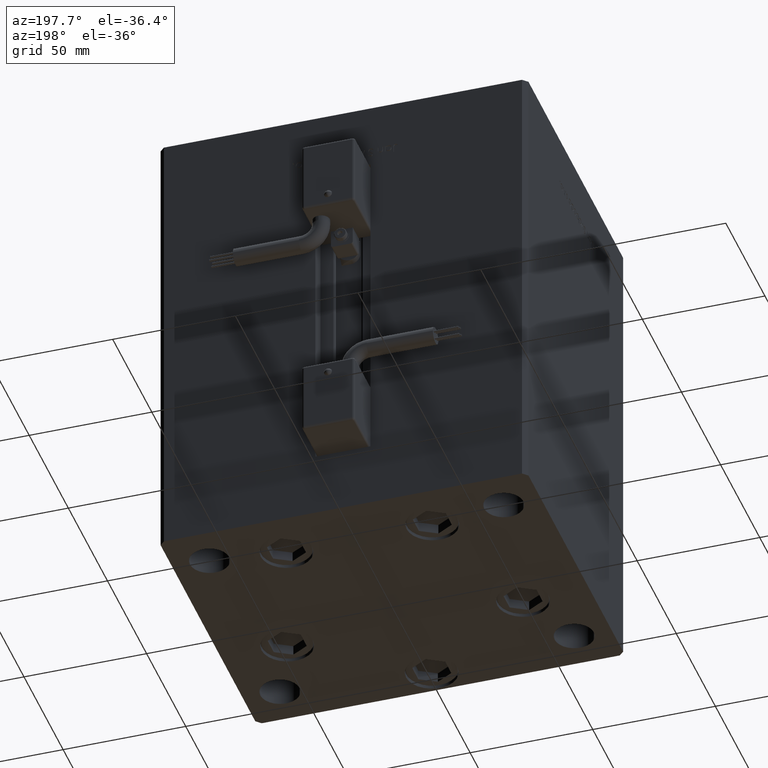
[diagram: clean part render]
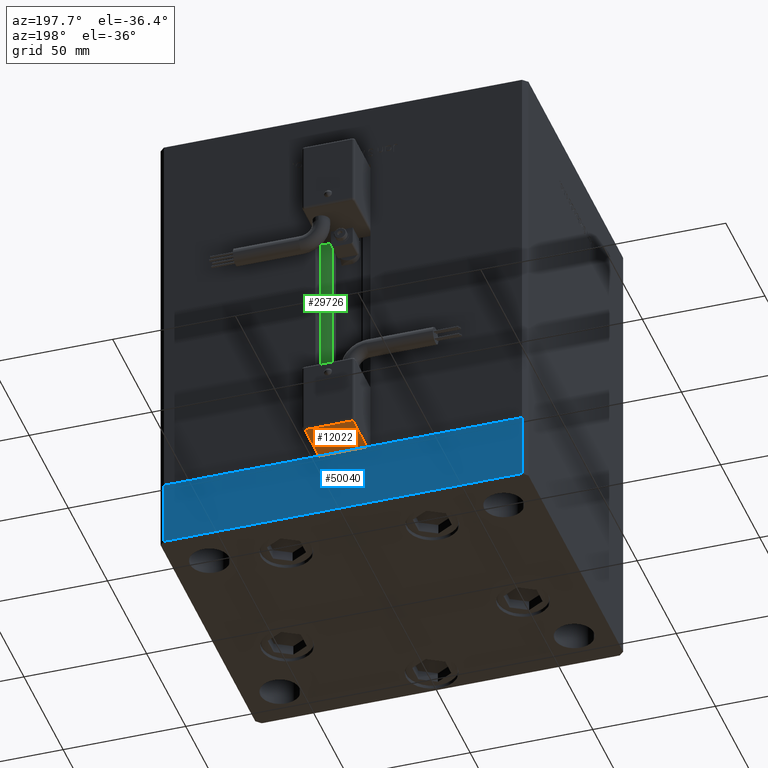
[diagram: same view with three faces highlighted in distinct colors, each labeled with its STEP entity id]
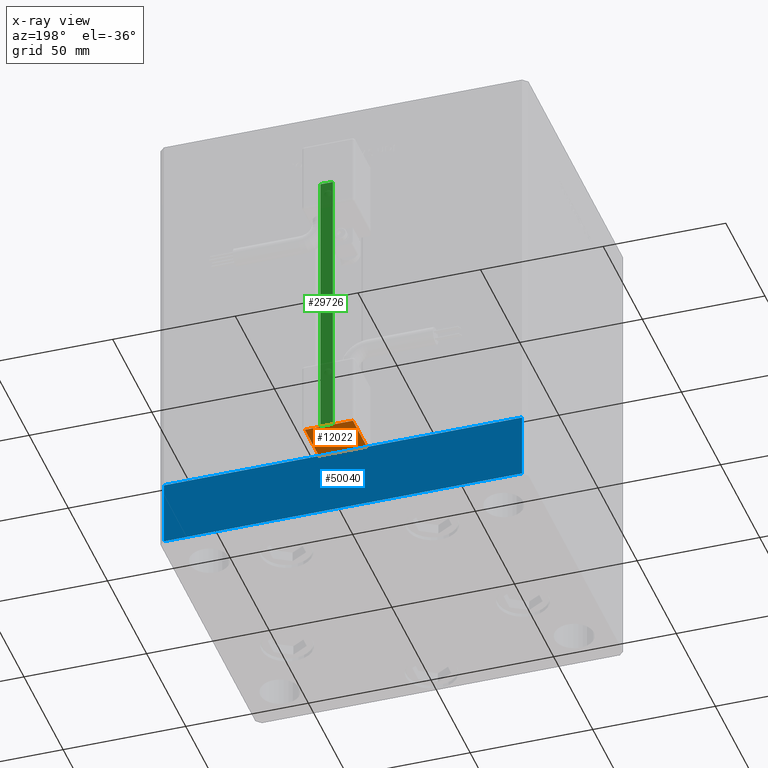
[diagram: x-ray of the same camera — body ghosted, the three highlighted faces saturated]
A machine part, auxiliary view with three faces highlighted in distinct colors.
The next image is the same camera in x-ray (body ghosted, the three faces saturated) — at least one of them is partly hidden behind the body in this view.
Their STEP definitions:

[orange] entity #12022 — the highlighted planar face has unit normal (0, 0, 1).
#490 = VERTEX_POINT ( 'NONE', #7812 ) ;
#1948 = DIRECTION ( 'NONE',  ( -1.000000000000000000, 0.000000000000000000, -2.220446049250000002E-16 ) ) ;
#3008 = CARTESIAN_POINT ( 'NONE',  ( 9.799999999999998934, 50.50000000000000000, -25.00000000000000000 ) ) ;
#4658 = VECTOR ( 'NONE', #34496, 1000.000000000000000 ) ;
#6692 = VERTEX_POINT ( 'NONE', #44783 ) ;
#7632 = EDGE_CURVE ( 'NONE', #490, #6692, #30154, .T. ) ;
#7812 = CARTESIAN_POINT ( 'NONE',  ( -9.799999999999998934, 27.00000000000000000, -25.00000000000000000 ) ) ;
#12022 = ADVANCED_FACE ( 'NONE', ( #28087 ), #12184, .F. ) ;
#12184 = PLANE ( 'NONE',  #33419 ) ;
#15599 = LINE ( 'NONE', #45413, #36672 ) ;
#16352 = DIRECTION ( 'NONE',  ( 2.220446049250000002E-16, 1.400000000000000069E-16, -1.000000000000000000 ) ) ;
#17190 = VECTOR ( 'NONE', #21790, 1000.000000000000000 ) ;
#17471 = CARTESIAN_POINT ( 'NONE',  ( 9.799999999999998934, 51.50000000000000000, -25.00000000000000000 ) ) ;
#19116 = VECTOR ( 'NONE', #21505, 1000.000000000000000 ) ;
#21447 = VERTEX_POINT ( 'NONE', #3008 ) ;
#21505 = DIRECTION ( 'NONE',  ( 1.000000000000000000, 0.000000000000000000, 2.220446049250000002E-16 ) ) ;
#21790 = DIRECTION ( 'NONE',  ( 3.108624468950000014E-32, -1.000000000000000000, -1.400000000000000069E-16 ) ) ;
#23654 = ORIENTED_EDGE ( 'NONE', *, *, #50111, .T. ) ;
#26415 = LINE ( 'NONE', #17471, #4658 ) ;
#27222 = EDGE_LOOP ( 'NONE', ( #23654, #38988, #33403, #42002 ) ) ;
#28087 = FACE_OUTER_BOUND ( 'NONE', #27222, .T. ) ;
#30154 = LINE ( 'NONE', #42689, #19116 ) ;
#33028 = CARTESIAN_POINT ( 'NONE',  ( -9.799999999999998934, 51.50000000000000000, -25.00000000000000000 ) ) ;
#33403 = ORIENTED_EDGE ( 'NONE', *, *, #35997, .T. ) ;
#33419 = AXIS2_PLACEMENT_3D ( 'NONE', #53997, #16352, #49239 ) ;
#34496 = DIRECTION ( 'NONE',  ( -3.108624468950000014E-32, 1.000000000000000000, 1.400000000000000069E-16 ) ) ;
#35689 = EDGE_CURVE ( 'NONE', #21447, #53533, #15599, .T. ) ;
#35997 = EDGE_CURVE ( 'NONE', #6692, #21447, #26415, .T. ) ;
#36672 = VECTOR ( 'NONE', #1948, 1000.000000000000000 ) ;
#38988 = ORIENTED_EDGE ( 'NONE', *, *, #7632, .T. ) ;
#40644 = CARTESIAN_POINT ( 'NONE',  ( -9.799999999999998934, 50.50000000000000000, -25.00000000000000000 ) ) ;
#42002 = ORIENTED_EDGE ( 'NONE', *, *, #35689, .T. ) ;
#42689 = CARTESIAN_POINT ( 'NONE',  ( 10.80000000000000071, 27.00000000000000000, -25.00000000000000000 ) ) ;
#44783 = CARTESIAN_POINT ( 'NONE',  ( 9.799999999999998934, 27.00000000000000000, -25.00000000000000000 ) ) ;
#45413 = CARTESIAN_POINT ( 'NONE',  ( 10.80000000000000071, 50.50000000000000000, -25.00000000000000000 ) ) ;
#46103 = LINE ( 'NONE', #33028, #17190 ) ;
#49239 = DIRECTION ( 'NONE',  ( 0.000000000000000000, -1.000000000000000000, -1.400000000000000069E-16 ) ) ;
#50111 = EDGE_CURVE ( 'NONE', #53533, #490, #46103, .T. ) ;
#53533 = VERTEX_POINT ( 'NONE', #40644 ) ;
#53997 = CARTESIAN_POINT ( 'NONE',  ( 10.80000000000000071, 51.50000000000000000, -25.00000000000000000 ) ) ;

[blue] entity #50040 — the highlighted planar face has unit normal (0, 1, 0).
#1633 = VECTOR ( 'NONE', #42651, 1000.000000000000000 ) ;
#2172 = CARTESIAN_POINT ( 'NONE',  ( 72.99999999999992895, 62.50000000000001421, 0.000000000000000000 ) ) ;
#2945 = CARTESIAN_POINT ( 'NONE',  ( 72.99999999999992895, 62.50000000000001421, -27.00000000000000000 ) ) ;
#5741 = PLANE ( 'NONE',  #12740 ) ;
#7672 = VERTEX_POINT ( 'NONE', #54691 ) ;
#8671 = LINE ( 'NONE', #25670, #1633 ) ;
#12126 = VERTEX_POINT ( 'NONE', #2172 ) ;
#12740 = AXIS2_PLACEMENT_3D ( 'NONE', #52832, #53641, #14646 ) ;
#13732 = ORIENTED_EDGE ( 'NONE', *, *, #54648, .F. ) ;
#14646 = DIRECTION ( 'NONE',  ( -1.000000000000000000, -1.901066822988282936E-16, 0.000000000000000000 ) ) ;
#17763 = CARTESIAN_POINT ( 'NONE',  ( 72.99999999999992895, 62.50000000000001421, -27.00000000000000000 ) ) ;
#17846 = DIRECTION ( 'NONE',  ( 0.000000000000000000, 0.000000000000000000, 1.000000000000000000 ) ) ;
#18386 = CARTESIAN_POINT ( 'NONE',  ( -73.00000000000001421, 62.49999999999998579, -27.00000000000000000 ) ) ;
#18586 = VECTOR ( 'NONE', #44755, 1000.000000000000000 ) ;
#22047 = LINE ( 'NONE', #42668, #40295 ) ;
#22300 = EDGE_CURVE ( 'NONE', #12126, #27799, #8671, .T. ) ;
#22761 = EDGE_CURVE ( 'NONE', #7672, #45452, #24433, .T. ) ;
#24433 = LINE ( 'NONE', #2945, #18586 ) ;
#25593 = DIRECTION ( 'NONE',  ( 0.000000000000000000, 0.000000000000000000, 1.000000000000000000 ) ) ;
#25670 = CARTESIAN_POINT ( 'NONE',  ( 72.99999999999992895, 62.50000000000001421, 0.000000000000000000 ) ) ;
#27799 = VERTEX_POINT ( 'NONE', #43832 ) ;
#29184 = ORIENTED_EDGE ( 'NONE', *, *, #38195, .T. ) ;
#30371 = EDGE_LOOP ( 'NONE', ( #41487, #13732, #45635, #29184 ) ) ;
#38195 = EDGE_CURVE ( 'NONE', #45452, #27799, #22047, .T. ) ;
#38397 = LINE ( 'NONE', #17763, #50168 ) ;
#40295 = VECTOR ( 'NONE', #17846, 1000.000000000000000 ) ;
#41487 = ORIENTED_EDGE ( 'NONE', *, *, #22300, .F. ) ;
#42651 = DIRECTION ( 'NONE',  ( -1.000000000000000000, -1.901066822988282689E-16, 0.000000000000000000 ) ) ;
#42668 = CARTESIAN_POINT ( 'NONE',  ( -73.00000000000001421, 62.49999999999998579, -27.00000000000000000 ) ) ;
#43832 = CARTESIAN_POINT ( 'NONE',  ( -73.00000000000001421, 62.49999999999998579, 0.000000000000000000 ) ) ;
#44713 = FACE_OUTER_BOUND ( 'NONE', #30371, .T. ) ;
#44755 = DIRECTION ( 'NONE',  ( -1.000000000000000000, -1.901066822988282689E-16, 0.000000000000000000 ) ) ;
#45452 = VERTEX_POINT ( 'NONE', #18386 ) ;
#45635 = ORIENTED_EDGE ( 'NONE', *, *, #22761, .T. ) ;
#50040 = ADVANCED_FACE ( 'NONE', ( #44713 ), #5741, .T. ) ;
#50168 = VECTOR ( 'NONE', #25593, 1000.000000000000000 ) ;
#52832 = CARTESIAN_POINT ( 'NONE',  ( 72.99999999999992895, 62.50000000000001421, -27.00000000000000000 ) ) ;
#53641 = DIRECTION ( 'NONE',  ( -1.901066822988282936E-16, 1.000000000000000000, 0.000000000000000000 ) ) ;
#54648 = EDGE_CURVE ( 'NONE', #7672, #12126, #38397, .T. ) ;
#54691 = CARTESIAN_POINT ( 'NONE',  ( 72.99999999999992895, 62.50000000000001421, -27.00000000000000000 ) ) ;

[green] entity #29726 — the highlighted planar face has unit normal (0, -1, 0).
#217 = CARTESIAN_POINT ( 'NONE',  ( 6.183333333334001480, 55.99999999999999289, 0.000000000000000000 ) ) ;
#714 = LINE ( 'NONE', #52808, #39409 ) ;
#2797 = CARTESIAN_POINT ( 'NONE',  ( 6.183333333334001480, 55.99999999999999289, 0.000000000000000000 ) ) ;
#2957 = CARTESIAN_POINT ( 'NONE',  ( 11.25000000000000178, 55.99999999999999289, 0.000000000000000000 ) ) ;
#4129 = DIRECTION ( 'NONE',  ( 0.000000000000000000, -0.000000000000000000, -1.000000000000000000 ) ) ;
#4865 = VERTEX_POINT ( 'NONE', #20167 ) ;
#7277 = DIRECTION ( 'NONE',  ( -0.000000000000000000, -0.000000000000000000, 1.000000000000000000 ) ) ;
#9246 = CARTESIAN_POINT ( 'NONE',  ( 11.25000000000000178, 55.99999999999999289, 136.0000000000000000 ) ) ;
#9859 = EDGE_CURVE ( 'NONE', #47837, #4865, #40997, .T. ) ;
#10623 = EDGE_CURVE ( 'NONE', #49380, #4865, #52738, .T. ) ;
#13490 = LINE ( 'NONE', #47775, #17053 ) ;
#14662 = VECTOR ( 'NONE', #28208, 1000.000000000000000 ) ;
#17053 = VECTOR ( 'NONE', #51959, 1000.000000000000000 ) ;
#17205 = ORIENTED_EDGE ( 'NONE', *, *, #9859, .T. ) ;
#20167 = CARTESIAN_POINT ( 'NONE',  ( 6.183333333334001480, 55.99999999999999289, 136.0000000000000000 ) ) ;
#26101 = CARTESIAN_POINT ( 'NONE',  ( 6.183333333334001480, 55.99999999999999289, 0.000000000000000000 ) ) ;
#28208 = DIRECTION ( 'NONE',  ( -1.000000000000000000, 0.000000000000000000, 0.000000000000000000 ) ) ;
#29726 = ADVANCED_FACE ( 'NONE', ( #29780 ), #51224, .F. ) ;
#29780 = FACE_OUTER_BOUND ( 'NONE', #31459, .T. ) ;
#30061 = DIRECTION ( 'NONE',  ( 0.000000000000000000, -1.000000000000000000, 0.000000000000000000 ) ) ;
#31459 = EDGE_LOOP ( 'NONE', ( #43197, #46240, #17205, #48317 ) ) ;
#31627 = DIRECTION ( 'NONE',  ( -0.000000000000000000, -0.000000000000000000, 1.000000000000000000 ) ) ;
#34328 = EDGE_CURVE ( 'NONE', #47837, #46783, #13490, .T. ) ;
#39409 = VECTOR ( 'NONE', #31627, 1000.000000000000000 ) ;
#39701 = VECTOR ( 'NONE', #7277, 1000.000000000000000 ) ;
#40997 = LINE ( 'NONE', #2797, #39701 ) ;
#43197 = ORIENTED_EDGE ( 'NONE', *, *, #47865, .F. ) ;
#44471 = AXIS2_PLACEMENT_3D ( 'NONE', #217, #30061, #4129 ) ;
#44627 = CARTESIAN_POINT ( 'NONE',  ( 0.000000000000000000, 55.99999999999999289, 136.0000000000000000 ) ) ;
#46240 = ORIENTED_EDGE ( 'NONE', *, *, #34328, .F. ) ;
#46783 = VERTEX_POINT ( 'NONE', #2957 ) ;
#47775 = CARTESIAN_POINT ( 'NONE',  ( 6.183333333334001480, 55.99999999999999289, 0.000000000000000000 ) ) ;
#47837 = VERTEX_POINT ( 'NONE', #26101 ) ;
#47865 = EDGE_CURVE ( 'NONE', #46783, #49380, #714, .T. ) ;
#48317 = ORIENTED_EDGE ( 'NONE', *, *, #10623, .F. ) ;
#49380 = VERTEX_POINT ( 'NONE', #9246 ) ;
#51224 = PLANE ( 'NONE',  #44471 ) ;
#51959 = DIRECTION ( 'NONE',  ( 1.000000000000000000, 0.000000000000000000, 0.000000000000000000 ) ) ;
#52738 = LINE ( 'NONE', #44627, #14662 ) ;
#52808 = CARTESIAN_POINT ( 'NONE',  ( 11.25000000000000178, 55.99999999999999289, 0.000000000000000000 ) ) ;